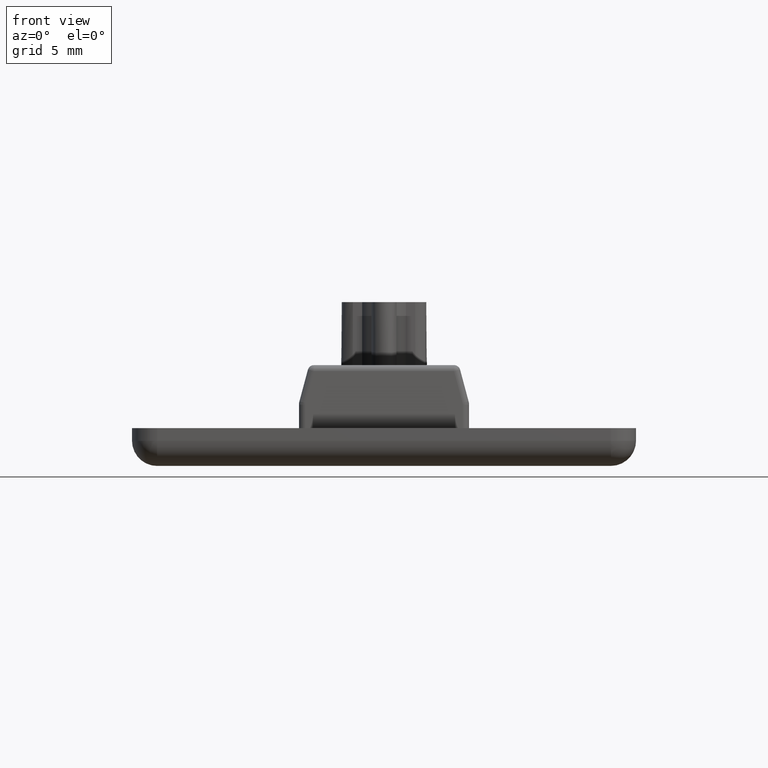
[diagram: clean part render]
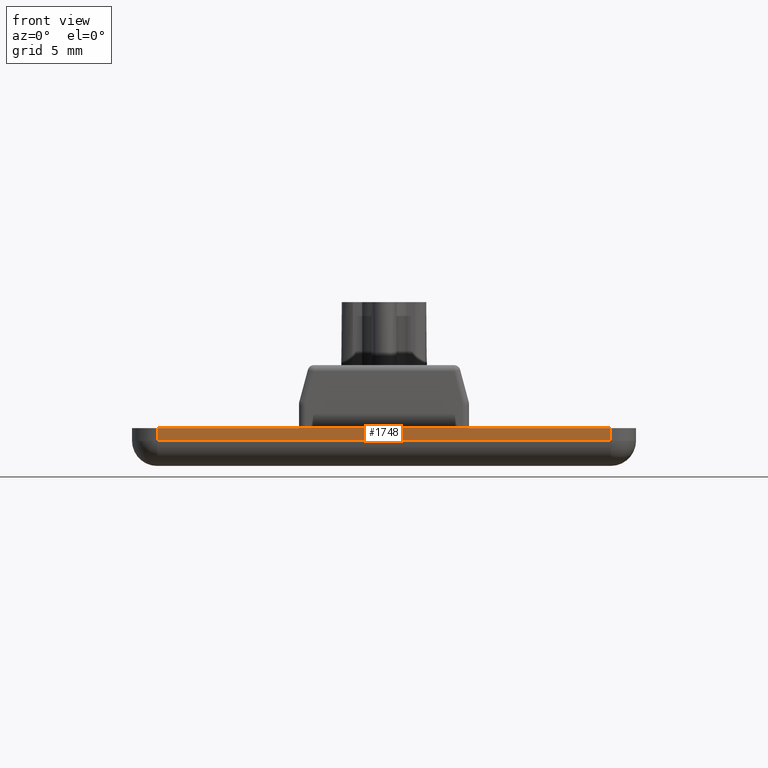
[diagram: same view with one face highlighted and labeled with its STEP entity id]
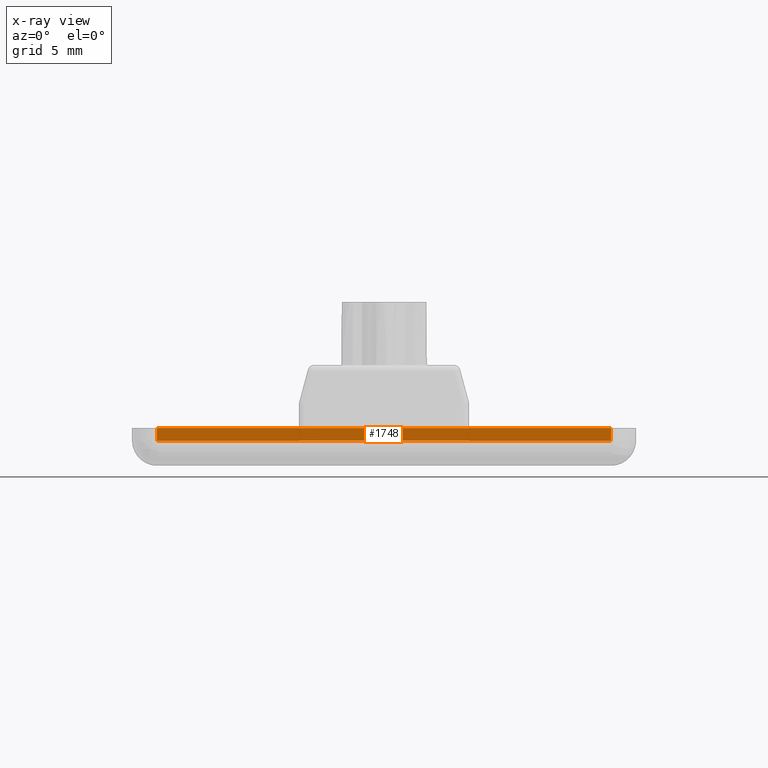
[diagram: x-ray of the same camera — body ghosted, the highlighted face saturated]
A machine part, front view. The second image highlights one B-rep face of the part: STEP entity #1748.
The next image is the same camera in x-ray: the body ghosted, the highlighted face saturated — about 0% of this face is hidden behind the body in this view.
In plain terms, the highlighted planar face has unit normal (0, -1, 0).
Its self-contained STEP definition (entity closure, byte-faithful):
#58=PLANE('',#1952);
#181=LINE('',#3253,#317);
#186=LINE('',#3274,#322);
#189=LINE('',#3293,#325);
#192=LINE('',#3297,#328);
#317=VECTOR('',#2413,36.);
#322=VECTOR('',#2434,1.);
#325=VECTOR('',#2457,1.);
#328=VECTOR('',#2462,36.);
#500=FACE_OUTER_BOUND('',#614,.T.);
#614=EDGE_LOOP('',(#1605,#1606,#1607,#1608));
#857=VERTEX_POINT('',#3249);
#859=VERTEX_POINT('',#3252);
#865=VERTEX_POINT('',#3266);
#873=VERTEX_POINT('',#3289);
#1094=EDGE_CURVE('',#857,#859,#181,.T.);
#1105=EDGE_CURVE('',#865,#857,#186,.T.);
#1114=EDGE_CURVE('',#859,#873,#189,.T.);
#1117=EDGE_CURVE('',#873,#865,#192,.T.);
#1605=ORIENTED_EDGE('',*,*,#1105,.F.);
#1606=ORIENTED_EDGE('',*,*,#1117,.F.);
#1607=ORIENTED_EDGE('',*,*,#1114,.F.);
#1608=ORIENTED_EDGE('',*,*,#1094,.F.);
#1748=ADVANCED_FACE('',(#500),#58,.T.);
#1952=AXIS2_PLACEMENT_3D('',#3317,#2487,#2488);
#2413=DIRECTION('',(1.,0.,0.));
#2434=DIRECTION('',(0.,0.,1.));
#2457=DIRECTION('',(0.,0.,-1.));
#2462=DIRECTION('',(-1.,0.,0.));
#2487=DIRECTION('center_axis',(0.,-1.,0.));
#2488=DIRECTION('ref_axis',(1.,0.,0.));
#3249=CARTESIAN_POINT('',(-18.,-20.,1.5));
#3252=CARTESIAN_POINT('',(18.,-20.,1.5));
#3253=CARTESIAN_POINT('',(20.,-20.,1.5));
#3266=CARTESIAN_POINT('',(-18.,-20.,0.5));
#3274=CARTESIAN_POINT('',(-18.,-20.,0.));
#3289=CARTESIAN_POINT('',(18.,-20.,0.5));
#3293=CARTESIAN_POINT('',(18.,-20.,0.));
#3297=CARTESIAN_POINT('',(-10.,-20.,0.5));
#3317=CARTESIAN_POINT('Origin',(-20.,-20.,0.));